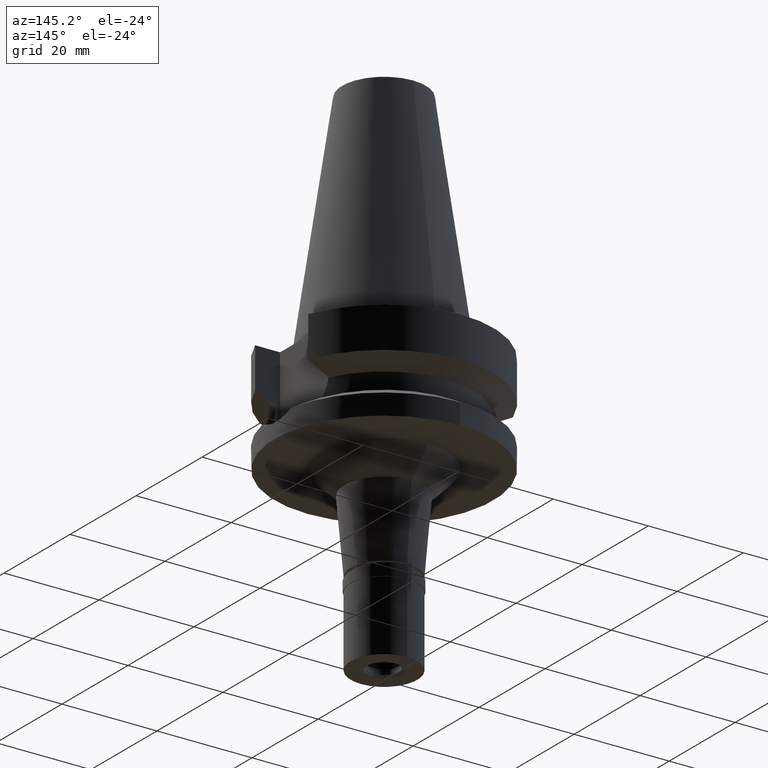
[diagram: clean part render]
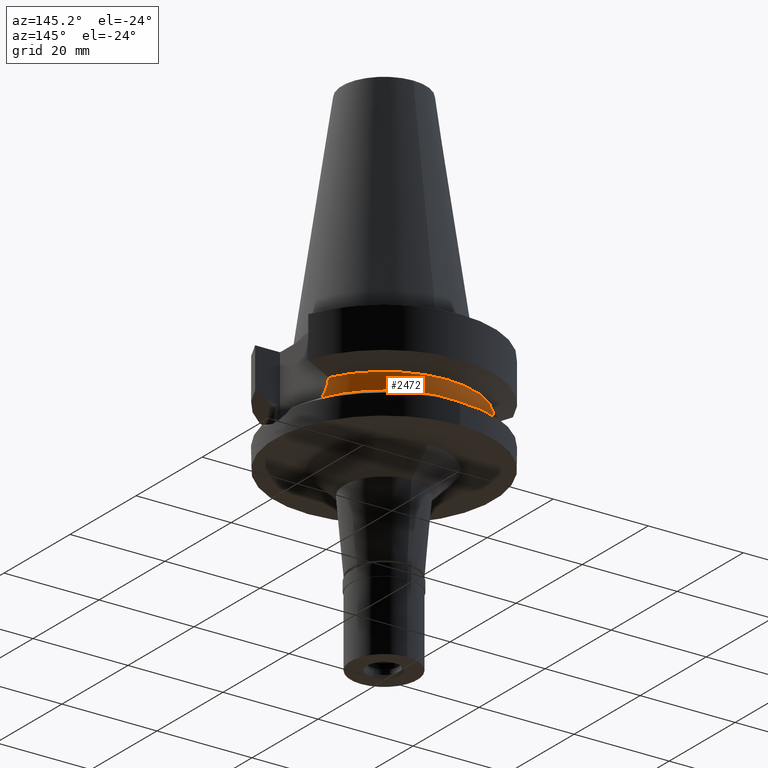
[diagram: same view with one face highlighted and labeled with its STEP entity id]
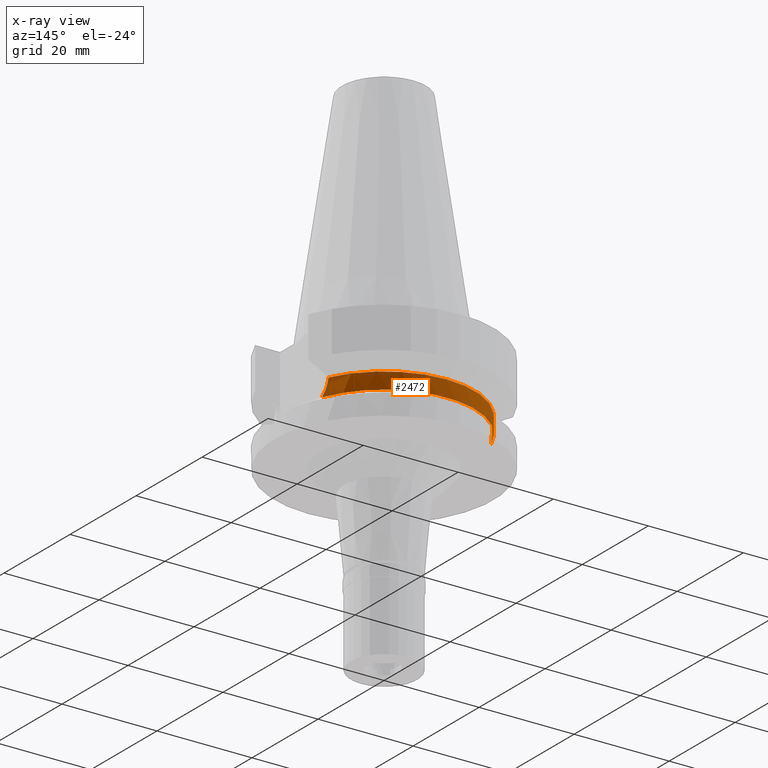
[diagram: x-ray of the same camera — body ghosted, the highlighted face saturated]
A machine part, auxiliary view. The second image highlights one B-rep face of the part: STEP entity #2472.
The next image is the same camera in x-ray: the body ghosted, the highlighted face saturated — about 1% of this face is hidden behind the body in this view.
In plain terms, the highlighted cylindrical surface (partial cylindrical patch) has radius 19 mm, axis along (0, 0, -1).
Its self-contained STEP definition (entity closure, byte-faithful):
#8 = CARTESIAN_POINT ( 'NONE',  ( -17.32020187217933938, 7.811452264630796449, -12.90108126107644360 ) ) ;
#165 = CARTESIAN_POINT ( 'NONE',  ( -17.75736593456000278, 6.758398853743999624, -15.32339055352999857 ) ) ;
#233 = CARTESIAN_POINT ( 'NONE',  ( -17.27395772691942000, 7.913379800923309837, -12.45762674626553768 ) ) ;
#397 = VERTEX_POINT ( 'NONE', #2211 ) ;
#402 = DIRECTION ( 'NONE',  ( 0.0000000000000000000, 0.0000000000000000000, -1.000000000000000000 ) ) ;
#578 = CARTESIAN_POINT ( 'NONE',  ( 17.23531622902000038, 7.996491146276001771, -11.87660607782000000 ) ) ;
#595 = CARTESIAN_POINT ( 'NONE',  ( 17.43825996245988819, 7.543902337193857832, -13.75966030957123820 ) ) ;
#631 = CIRCLE ( 'NONE', #1698, 19.00000000000000000 ) ;
#690 = VERTEX_POINT ( 'NONE', #2139 ) ;
#717 = DIRECTION ( 'NONE',  ( 0.0000000000000000000, 0.0000000000000000000, -1.000000000000000000 ) ) ;
#736 = CARTESIAN_POINT ( 'NONE',  ( 17.75736593456000278, 6.758398853743999624, -15.32339055352999857 ) ) ;
#776 = ORIENTED_EDGE ( 'NONE', *, *, #2629, .T. ) ;
#848 = ORIENTED_EDGE ( 'NONE', *, *, #2058, .F. ) ;
#904 = CARTESIAN_POINT ( 'NONE',  ( -17.75736593456000278, 6.758398853743999624, -15.32339055352999857 ) ) ;
#926 = DIRECTION ( 'NONE',  ( 0.0000000000000000000, -1.000000000000000000, 0.0000000000000000000 ) ) ;
#990 = AXIS2_PLACEMENT_3D ( 'NONE', #2254, #717, #926 ) ;
#1038 = B_SPLINE_CURVE_WITH_KNOTS ( 'NONE', 3,
 ( #1376, #2310, #233, #8, #2487, #1078, #1548, #2006, #1090, #1265, #2023, #2864, #1734, #2640, #165 ),
 .UNSPECIFIED., .F., .F.,
 ( 4, 2, 2, 1, 1, 1, 2, 2, 4 ),
 ( 0.0000000000000000000, 0.2500000000000002220, 0.3749999999999996669, 0.4374999999999998335, 0.4687499999999991673, 0.4843749999999990008, 0.4921874999999995004, 0.5000000000000000000, 1.000000000000000000 ),
 .UNSPECIFIED. ) ;
#1048 = CARTESIAN_POINT ( 'NONE',  ( 17.53683850607051653, 7.312769253924538582, -14.31902480999137950 ) ) ;
#1078 = CARTESIAN_POINT ( 'NONE',  ( -17.36640948863165690, 7.707982828529734043, -13.27282317180522497 ) ) ;
#1089 = CARTESIAN_POINT ( 'NONE',  ( 17.47454244272013923, 7.459747681859946411, -13.97656327294564527 ) ) ;
#1090 = CARTESIAN_POINT ( 'NONE',  ( -17.41029288300902422, 7.608179589641950180, -13.58035844438667716 ) ) ;
#1103 = DIRECTION ( 'NONE',  ( 0.0000000000000000000, 1.000000000000000000, 0.0000000000000000000 ) ) ;
#1204 = ORIENTED_EDGE ( 'NONE', *, *, #1974, .T. ) ;
#1217 = B_SPLINE_CURVE_WITH_KNOTS ( 'NONE', 3,
 ( #736, #1655, #1260, #1048, #1968, #1089, #2696, #595, #2681, #2881, #2653, #1990, #2930, #1546, #578 ),
 .UNSPECIFIED., .F., .F.,
 ( 4, 2, 2, 1, 1, 1, 2, 2, 4 ),
 ( 0.0000000000000000000, 0.2500000000000016098, 0.3750000000000026645, 0.4375000000000037192, 0.4687500000000031641, 0.4843750000000026645, 0.4921875000000029421, 0.5000000000000032196, 1.000000000000000000 ),
 .UNSPECIFIED. ) ;
#1260 = CARTESIAN_POINT ( 'NONE',  ( 17.62113139266513429, 7.108367418708962937, -14.74095000844944536 ) ) ;
#1265 = CARTESIAN_POINT ( 'NONE',  ( -17.41455400308252877, 7.598412036672739234, -13.60833259774256199 ) ) ;
#1319 = CYLINDRICAL_SURFACE ( 'NONE', #990, 19.00000000000000000 ) ;
#1329 = CARTESIAN_POINT ( 'NONE',  ( 0.0000000000000000000, 1.093341284896999988E-14, -11.87660944646999894 ) ) ;
#1347 = EDGE_CURVE ( 'NONE', #397, #2089, #1038, .T. ) ;
#1376 = CARTESIAN_POINT ( 'NONE',  ( -17.23531135277999837, 7.996501749842999551, -11.87660739337000138 ) ) ;
#1425 = CARTESIAN_POINT ( 'NONE',  ( 17.75736593456000278, 6.758398853743999624, -15.32339055352999857 ) ) ;
#1439 = AXIS2_PLACEMENT_3D ( 'NONE', #1329, #402, #1103 ) ;
#1457 = EDGE_LOOP ( 'NONE', ( #1983, #776, #848, #1204 ) ) ;
#1546 = CARTESIAN_POINT ( 'NONE',  ( 17.26628505399860103, 7.929743580510503875, -12.45264544718342314 ) ) ;
#1548 = CARTESIAN_POINT ( 'NONE',  ( -17.38156622591650802, 7.673725377166795703, -13.38458314266559057 ) ) ;
#1550 = FACE_OUTER_BOUND ( 'NONE', #1457, .T. ) ;
#1554 = VERTEX_POINT ( 'NONE', #1425 ) ;
#1631 = DIRECTION ( 'NONE',  ( 0.0000000000000000000, 1.000000000000000000, 0.0000000000000000000 ) ) ;
#1655 = CARTESIAN_POINT ( 'NONE',  ( 17.68527465920666586, 6.947815191073233088, -15.03067689317560784 ) ) ;
#1698 = AXIS2_PLACEMENT_3D ( 'NONE', #1980, #2890, #1631 ) ;
#1734 = CARTESIAN_POINT ( 'NONE',  ( -17.50086807635499753, 7.400179108355296798, -14.16641331494730061 ) ) ;
#1968 = CARTESIAN_POINT ( 'NONE',  ( 17.51072787940859854, 7.374839633894187507, -14.18046796346550309 ) ) ;
#1974 = EDGE_CURVE ( 'NONE', #1554, #2089, #631, .T. ) ;
#1980 = CARTESIAN_POINT ( 'NONE',  ( 0.0000000000000000000, 1.022848384030000006E-14, -15.32339055352999857 ) ) ;
#1983 = ORIENTED_EDGE ( 'NONE', *, *, #1347, .F. ) ;
#1990 = CARTESIAN_POINT ( 'NONE',  ( 17.42163631444919858, 7.582155995951294969, -13.65434988420305729 ) ) ;
#2006 = CARTESIAN_POINT ( 'NONE',  ( -17.40050758142160703, 7.630565565654109150, -13.51508960571545792 ) ) ;
#2023 = CARTESIAN_POINT ( 'NONE',  ( -17.41740973188557717, 7.591861673428670798, -13.62698225821515585 ) ) ;
#2058 = EDGE_CURVE ( 'NONE', #1554, #690, #1217, .T. ) ;
#2089 = VERTEX_POINT ( 'NONE', #904 ) ;
#2139 = CARTESIAN_POINT ( 'NONE',  ( 17.23531622902000038, 7.996491146276001771, -11.87660607782000000 ) ) ;
#2211 = CARTESIAN_POINT ( 'NONE',  ( -17.23531135277999837, 7.996501749842999551, -11.87660739337000138 ) ) ;
#2254 = CARTESIAN_POINT ( 'NONE',  ( 0.0000000000000000000, 1.881302412850000052E-14, 53.62000000000000455 ) ) ;
#2310 = CARTESIAN_POINT ( 'NONE',  ( -17.25079912548185490, 7.963111191691059076, -12.16468723194747881 ) ) ;
#2472 = ADVANCED_FACE ( 'NONE', ( #1550 ), #1319, .T. ) ;
#2487 = CARTESIAN_POINT ( 'NONE',  ( -17.33753429444990601, 7.772924035876657811, -13.04956638904990385 ) ) ;
#2629 = EDGE_CURVE ( 'NONE', #397, #690, #2880, .T. ) ;
#2640 = CARTESIAN_POINT ( 'NONE',  ( -17.61322740993510649, 7.137115851997467786, -14.73814199281767223 ) ) ;
#2653 = CARTESIAN_POINT ( 'NONE',  ( 17.42272085241554791, 7.579664041000407693, -13.66132223650644661 ) ) ;
#2681 = CARTESIAN_POINT ( 'NONE',  ( 17.42911851113775157, 7.564954524542320868, -13.70217975904774477 ) ) ;
#2696 = CARTESIAN_POINT ( 'NONE',  ( 17.45719485020201844, 7.500152504448616142, -13.87559139655189355 ) ) ;
#2864 = CARTESIAN_POINT ( 'NONE',  ( -17.41902886909257120, 7.588145056433591051, -13.63749496353912960 ) ) ;
#2880 = CIRCLE ( 'NONE', #1439, 19.00000000000000000 ) ;
#2881 = CARTESIAN_POINT ( 'NONE',  ( 17.42527060183159904, 7.573803216216433043, -13.67765101995079924 ) ) ;
#2890 = DIRECTION ( 'NONE',  ( 0.0000000000000000000, 0.0000000000000000000, 1.000000000000000000 ) ) ;
#2930 = CARTESIAN_POINT ( 'NONE',  ( 17.32791110705245075, 7.797407455527095799, -13.04850004286706699 ) ) ;